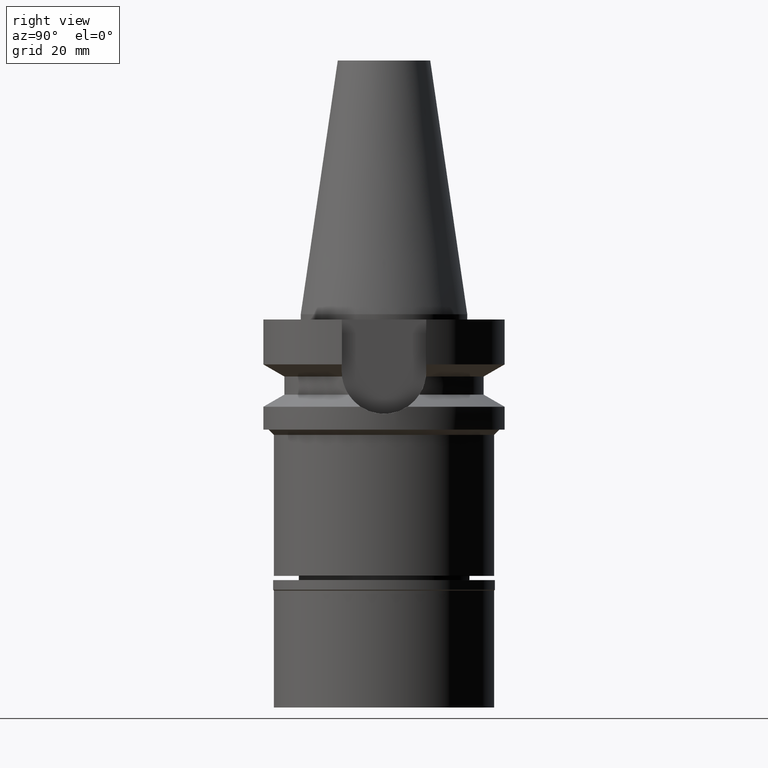
[diagram: clean part render]
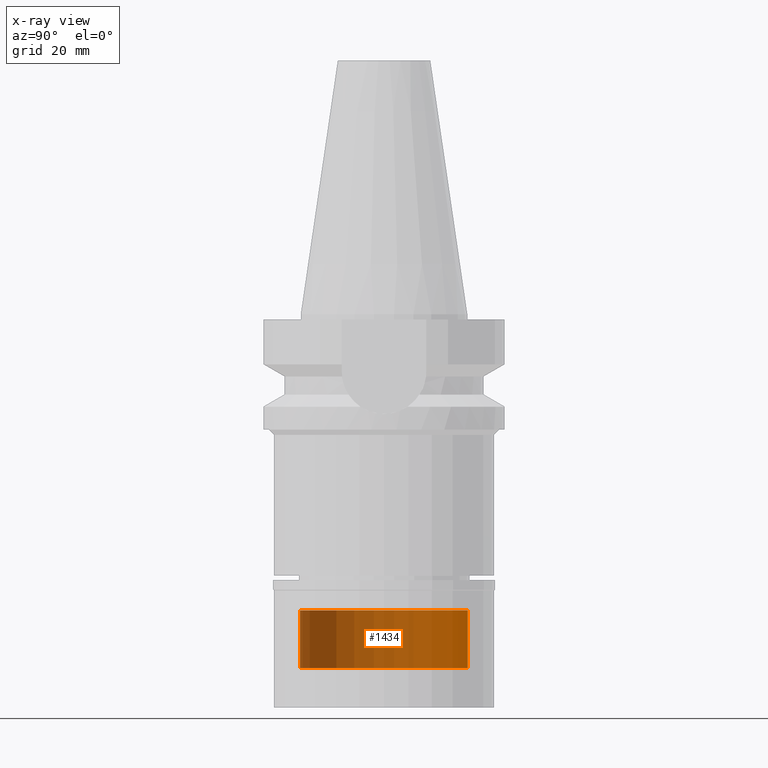
[diagram: x-ray — body ghosted, one internal face saturated and labeled with its STEP entity id]
A machine part, right view, then the same camera in x-ray: the body is ghosted and one INTERNAL B-rep face — a face not visible from any outside direction — is saturated and labeled: STEP entity #1434.
In plain terms, the highlighted cylindrical surface (partial cylindrical patch) has radius 16 mm, axis along (0, 0, -1).
Its self-contained STEP definition (entity closure, byte-faithful):
#25 = VECTOR ( 'NONE', #2620, 1000.000000000000000 ) ;
#150 = ORIENTED_EDGE ( 'NONE', *, *, #2024, .T. ) ;
#277 = CYLINDRICAL_SURFACE ( 'NONE', #909, 16.00000000000000000 ) ;
#282 = CIRCLE ( 'NONE', #2431, 16.00000000000000000 ) ;
#551 = CARTESIAN_POINT ( 'NONE',  ( 0.0000000000000000000, -16.00000000000000000, -56.50000000000000000 ) ) ;
#612 = ORIENTED_EDGE ( 'NONE', *, *, #1583, .F. ) ;
#625 = CARTESIAN_POINT ( 'NONE',  ( 0.0000000000000000000, 1.888344131944999946E-14, -67.50000000000000000 ) ) ;
#748 = LINE ( 'NONE', #1687, #25 ) ;
#809 = CARTESIAN_POINT ( 'NONE',  ( 0.0000000000000000000, -16.00000000000000000, -56.50000000000000000 ) ) ;
#902 = DIRECTION ( 'NONE',  ( 0.0000000000000000000, 0.0000000000000000000, 1.000000000000000000 ) ) ;
#909 = AXIS2_PLACEMENT_3D ( 'NONE', #1179, #1240, #1649 ) ;
#1018 = DIRECTION ( 'NONE',  ( 0.0000000000000000000, 0.0000000000000000000, -1.000000000000000000 ) ) ;
#1022 = VERTEX_POINT ( 'NONE', #1759 ) ;
#1169 = CIRCLE ( 'NONE', #1558, 16.00000000000000000 ) ;
#1179 = CARTESIAN_POINT ( 'NONE',  ( 0.0000000000000000000, 1.888344131944999946E-14, 54.19500000000000028 ) ) ;
#1195 = FACE_OUTER_BOUND ( 'NONE', #1426, .T. ) ;
#1240 = DIRECTION ( 'NONE',  ( 0.0000000000000000000, 0.0000000000000000000, -1.000000000000000000 ) ) ;
#1326 = DIRECTION ( 'NONE',  ( 0.0000000000000000000, 0.0000000000000000000, -1.000000000000000000 ) ) ;
#1401 = VERTEX_POINT ( 'NONE', #1709 ) ;
#1426 = EDGE_LOOP ( 'NONE', ( #150, #612, #1572, #1528 ) ) ;
#1434 = ADVANCED_FACE ( 'NONE', ( #1195 ), #277, .T. ) ;
#1482 = LINE ( 'NONE', #551, #1940 ) ;
#1528 = ORIENTED_EDGE ( 'NONE', *, *, #2288, .T. ) ;
#1558 = AXIS2_PLACEMENT_3D ( 'NONE', #625, #902, #2995 ) ;
#1572 = ORIENTED_EDGE ( 'NONE', *, *, #2465, .T. ) ;
#1583 = EDGE_CURVE ( 'NONE', #1909, #1022, #1482, .T. ) ;
#1592 = DIRECTION ( 'NONE',  ( 0.0000000000000000000, -1.000000000000000000, 0.0000000000000000000 ) ) ;
#1649 = DIRECTION ( 'NONE',  ( 0.0000000000000000000, -1.000000000000000000, 0.0000000000000000000 ) ) ;
#1687 = CARTESIAN_POINT ( 'NONE',  ( 0.0000000000000000000, 16.00000000000000000, -56.50000000000000000 ) ) ;
#1709 = CARTESIAN_POINT ( 'NONE',  ( 0.0000000000000000000, 16.00000000000000000, -67.50000000000000000 ) ) ;
#1759 = CARTESIAN_POINT ( 'NONE',  ( 0.0000000000000000000, -16.00000000000000000, -67.50000000000000000 ) ) ;
#1909 = VERTEX_POINT ( 'NONE', #809 ) ;
#1940 = VECTOR ( 'NONE', #1018, 1000.000000000000000 ) ;
#2024 = EDGE_CURVE ( 'NONE', #1401, #1022, #1169, .T. ) ;
#2056 = CARTESIAN_POINT ( 'NONE',  ( 0.0000000000000000000, 1.888344131944999946E-14, -56.50000000000000000 ) ) ;
#2057 = CARTESIAN_POINT ( 'NONE',  ( 0.0000000000000000000, 16.00000000000000000, -56.50000000000000000 ) ) ;
#2288 = EDGE_CURVE ( 'NONE', #2989, #1401, #748, .T. ) ;
#2431 = AXIS2_PLACEMENT_3D ( 'NONE', #2056, #1326, #1592 ) ;
#2465 = EDGE_CURVE ( 'NONE', #1909, #2989, #282, .T. ) ;
#2620 = DIRECTION ( 'NONE',  ( 0.0000000000000000000, 0.0000000000000000000, -1.000000000000000000 ) ) ;
#2989 = VERTEX_POINT ( 'NONE', #2057 ) ;
#2995 = DIRECTION ( 'NONE',  ( 0.0000000000000000000, 1.000000000000000000, 0.0000000000000000000 ) ) ;